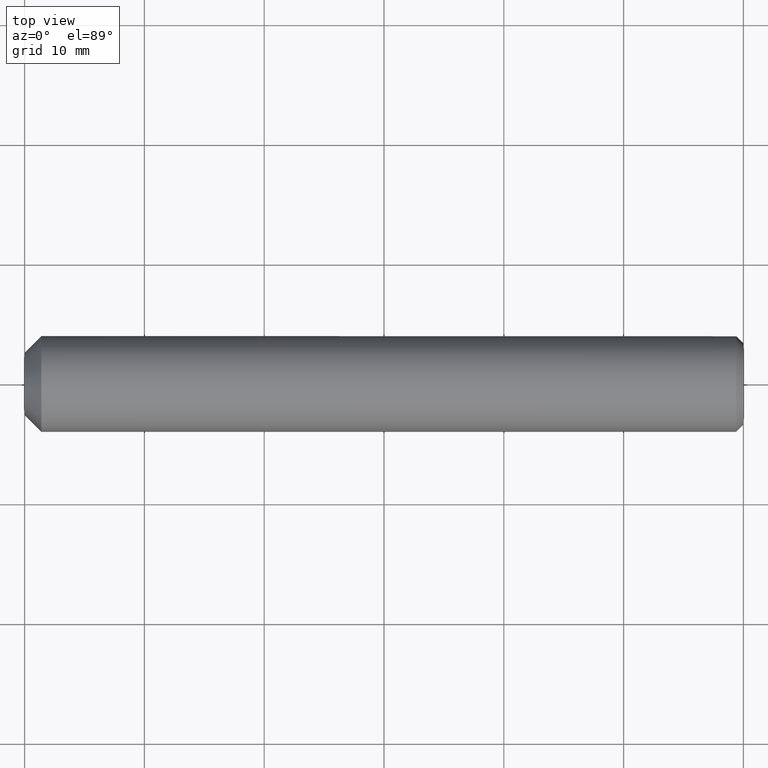
[diagram: clean part render]
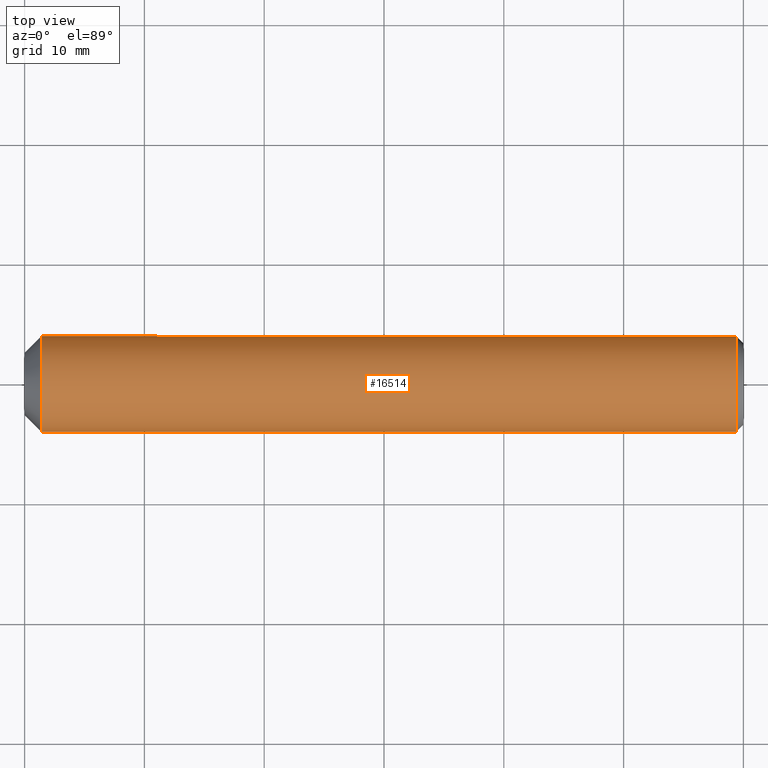
[diagram: same view with one face highlighted and labeled with its STEP entity id]
A machine part, top view. The second image highlights one B-rep face of the part: STEP entity #16514.
In plain terms, the highlighted cylindrical surface (bore or boss wall) has radius 4 mm, axis along (-1, -0, -0).
Its self-contained STEP definition (entity closure, byte-faithful):
#440 = CARTESIAN_POINT ( 'NONE',  ( 1.399999999999992100, -4.538988261647290800E-017, 0.0000000000000000000 ) ) ;
#622 = DIRECTION ( 'NONE',  ( -5.421010862427522200E-017, -1.000000000000000000, 0.0000000000000000000 ) ) ;
#633 = EDGE_CURVE ( 'NONE', #9732, #9732, #1024, .T. ) ;
#684 = AXIS2_PLACEMENT_3D ( 'NONE', #13357, #11995, #10573 ) ;
#980 = EDGE_LOOP ( 'NONE', ( #3666 ) ) ;
#1024 = CIRCLE ( 'NONE', #17901, 4.000000000000000000 ) ;
#2884 = FACE_OUTER_BOUND ( 'NONE', #11149, .T. ) ;
#3038 = ORIENTED_EDGE ( 'NONE', *, *, #633, .T. ) ;
#3073 = CARTESIAN_POINT ( 'NONE',  ( 1.399999999999991900, -4.000000000000000000, 0.0000000000000000000 ) ) ;
#3257 = CARTESIAN_POINT ( 'NONE',  ( 59.39999999999998400, 0.0000000000000000000, -4.000000000000000000 ) ) ;
#3666 = ORIENTED_EDGE ( 'NONE', *, *, #4920, .F. ) ;
#4421 = CYLINDRICAL_SURFACE ( 'NONE', #684, 4.000000000000000000 ) ;
#4920 = EDGE_CURVE ( 'NONE', #11508, #11508, #13504, .T. ) ;
#6502 = DIRECTION ( 'NONE',  ( 0.0000000000000000000, 0.0000000000000000000, -1.000000000000000000 ) ) ;
#7156 = AXIS2_PLACEMENT_3D ( 'NONE', #440, #10367, #622 ) ;
#8156 = FACE_OUTER_BOUND ( 'NONE', #980, .T. ) ;
#8180 = CARTESIAN_POINT ( 'NONE',  ( 59.39999999999998400, 0.0000000000000000000, 0.0000000000000000000 ) ) ;
#9732 = VERTEX_POINT ( 'NONE', #3257 ) ;
#10367 = DIRECTION ( 'NONE',  ( -1.000000000000000000, 3.242134472605225800E-017, -0.0000000000000000000 ) ) ;
#10573 = DIRECTION ( 'NONE',  ( 0.0000000000000000000, 0.0000000000000000000, 1.000000000000000000 ) ) ;
#11149 = EDGE_LOOP ( 'NONE', ( #3038 ) ) ;
#11508 = VERTEX_POINT ( 'NONE', #3073 ) ;
#11995 = DIRECTION ( 'NONE',  ( -1.000000000000000000, -0.0000000000000000000, -0.0000000000000000000 ) ) ;
#13357 = CARTESIAN_POINT ( 'NONE',  ( 60.00000000000000000, 0.0000000000000000000, 0.0000000000000000000 ) ) ;
#13504 = CIRCLE ( 'NONE', #7156, 4.000000000000000000 ) ;
#15055 = DIRECTION ( 'NONE',  ( -1.000000000000000000, 0.0000000000000000000, 0.0000000000000000000 ) ) ;
#16514 = ADVANCED_FACE ( 'NONE', ( #2884, #8156 ), #4421, .T. ) ;
#17901 = AXIS2_PLACEMENT_3D ( 'NONE', #8180, #15055, #6502 ) ;